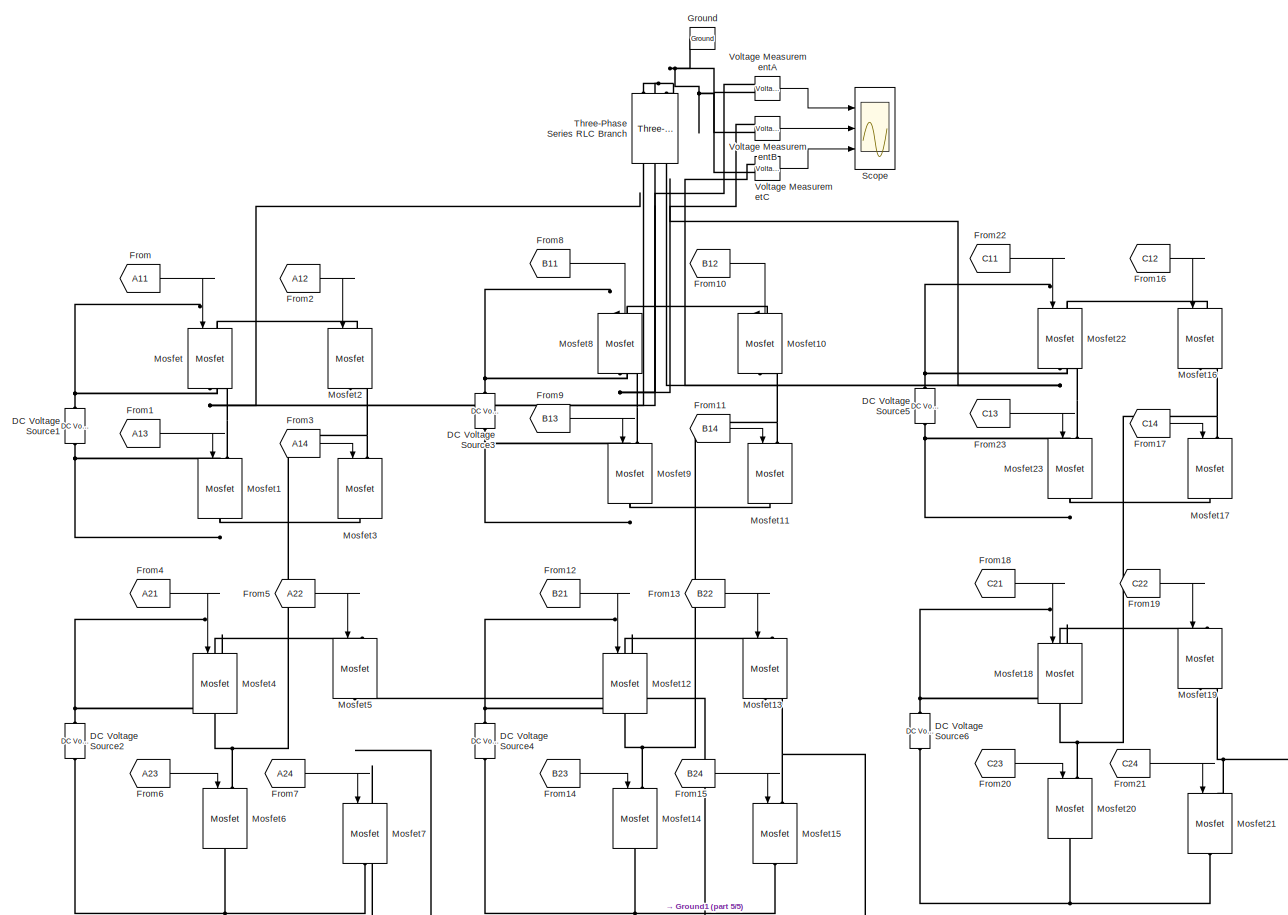
[diagram: root canvas - part 1/5, right side, full height]
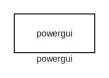
[diagram: root canvas - part 2/5, top center region]
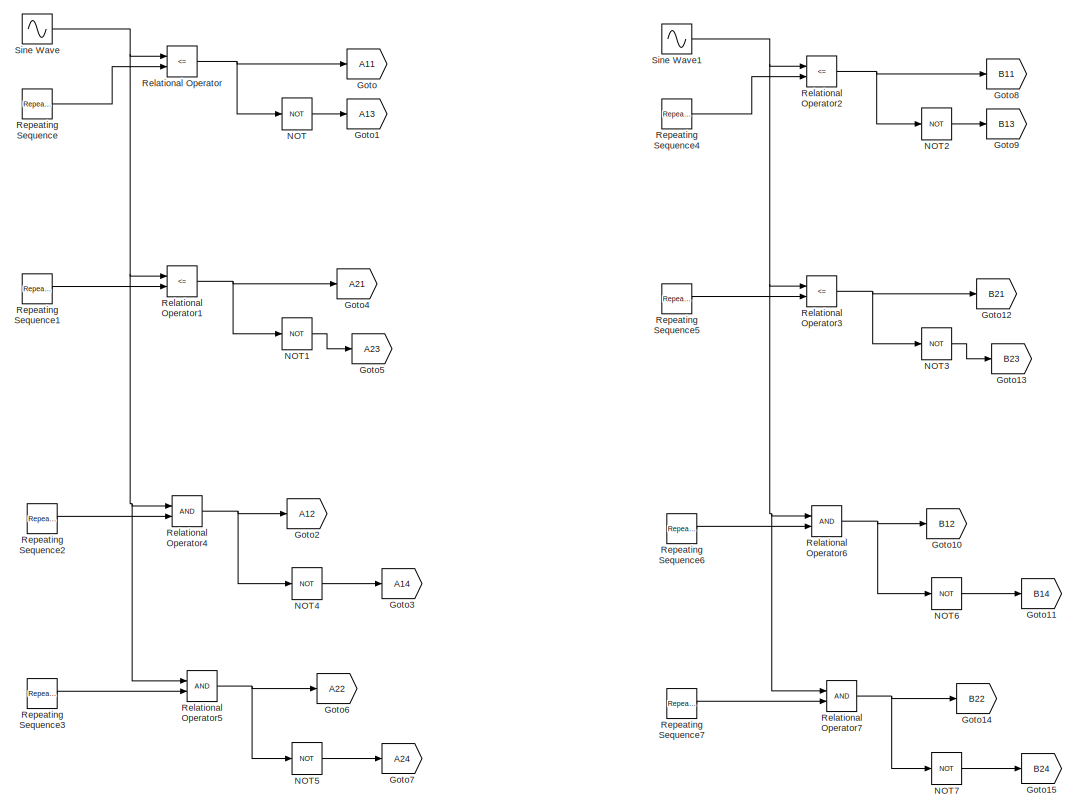
[diagram: root canvas - part 3/5, middle left region]
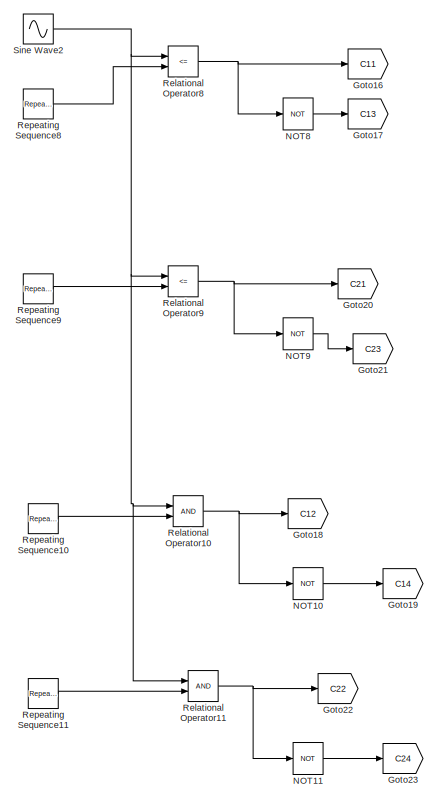
[diagram: root canvas - part 4/5, central region]
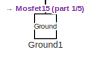
[diagram: root canvas - part 5/5, bottom right region]
MODEL slx_684bea2370a7
KIND model
CONFIG AbsTol = auto
CONFIG EnableMultiTasking = off
CONFIG FixedStep = auto
CONFIG MaxStep = 1e-6
CONFIG MinStep = auto
CONFIG RelTol = 1e-5
CONFIG SampleTimeConstraint = Unconstrained
CONFIG SolverName = ode45
CONFIG StartTime = 0.0
CONFIG StopTime = 0.5
BLOCK [Reference] DC Voltage Source1  REF=spsDCVoltageSourceLib/DC Voltage Source
  Ports = [0, 0, 0, 0, 0, 1, 1]
  SourceBlock = spsDCVoltageSourceLib/DC Voltage Source
  SourceProductBaseCode = PS
  SourceType = DC Voltage Source
BLOCK [Reference] DC Voltage Source2  REF=spsDCVoltageSourceLib/DC Voltage Source
  Ports = [0, 0, 0, 0, 0, 1, 1]
  SourceBlock = spsDCVoltageSourceLib/DC Voltage Source
  SourceProductBaseCode = PS
  SourceType = DC Voltage Source
BLOCK [Reference] DC Voltage Source3  REF=spsDCVoltageSourceLib/DC Voltage Source
  Ports = [0, 0, 0, 0, 0, 1, 1]
  SourceBlock = spsDCVoltageSourceLib/DC Voltage Source
  SourceProductBaseCode = PS
  SourceType = DC Voltage Source
BLOCK [Reference] DC Voltage Source4  REF=spsDCVoltageSourceLib/DC Voltage Source
  Ports = [0, 0, 0, 0, 0, 1, 1]
  SourceBlock = spsDCVoltageSourceLib/DC Voltage Source
  SourceProductBaseCode = PS
  SourceType = DC Voltage Source
BLOCK [Reference] DC Voltage Source5  REF=spsDCVoltageSourceLib/DC Voltage Source
  Ports = [0, 0, 0, 0, 0, 1, 1]
  SourceBlock = spsDCVoltageSourceLib/DC Voltage Source
  SourceProductBaseCode = PS
  SourceType = DC Voltage Source
BLOCK [Reference] DC Voltage Source6  REF=spsDCVoltageSourceLib/DC Voltage Source
  Ports = [0, 0, 0, 0, 0, 1, 1]
  SourceBlock = spsDCVoltageSourceLib/DC Voltage Source
  SourceProductBaseCode = PS
  SourceType = DC Voltage Source
BLOCK [From] From
  GotoTag = A11
BLOCK [From] From1
  GotoTag = A13
BLOCK [From] From10
  GotoTag = B12
BLOCK [From] From11
  GotoTag = B14
BLOCK [From] From12
  GotoTag = B21
BLOCK [From] From13
  GotoTag = B22
BLOCK [From] From14
  GotoTag = B23
BLOCK [From] From15
  GotoTag = B24
BLOCK [From] From16
  GotoTag = C12
BLOCK [From] From17
  GotoTag = C14
BLOCK [From] From18
  GotoTag = C21
BLOCK [From] From19
  GotoTag = C22
BLOCK [From] From2
  GotoTag = A12
BLOCK [From] From20
  GotoTag = C23
BLOCK [From] From21
  GotoTag = C24
BLOCK [From] From22
  GotoTag = C11
BLOCK [From] From23
  GotoTag = C13
BLOCK [From] From3
  GotoTag = A14
BLOCK [From] From4
  GotoTag = A21
BLOCK [From] From5
  GotoTag = A22
BLOCK [From] From6
  GotoTag = A23
BLOCK [From] From7
  GotoTag = A24
BLOCK [From] From8
  GotoTag = B11
BLOCK [From] From9
  GotoTag = B13
BLOCK [Goto] Goto
  GotoTag = A11
BLOCK [Goto] Goto1
  GotoTag = A13
BLOCK [Goto] Goto10
  GotoTag = B12
BLOCK [Goto] Goto11
  GotoTag = B14
BLOCK [Goto] Goto12
  GotoTag = B21
BLOCK [Goto] Goto13
  GotoTag = B23
BLOCK [Goto] Goto14
  GotoTag = B22
BLOCK [Goto] Goto15
  GotoTag = B24
BLOCK [Goto] Goto16
  GotoTag = C11
BLOCK [Goto] Goto17
  GotoTag = C13
BLOCK [Goto] Goto18
  GotoTag = C12
BLOCK [Goto] Goto19
  GotoTag = C14
BLOCK [Goto] Goto2
  GotoTag = A12
BLOCK [Goto] Goto20
  GotoTag = C21
BLOCK [Goto] Goto21
  GotoTag = C23
BLOCK [Goto] Goto22
  GotoTag = C22
BLOCK [Goto] Goto23
  GotoTag = C24
BLOCK [Goto] Goto3
  GotoTag = A14
BLOCK [Goto] Goto4
  GotoTag = A21
BLOCK [Goto] Goto5
  GotoTag = A23
BLOCK [Goto] Goto6
  GotoTag = A22
BLOCK [Goto] Goto7
  GotoTag = A24
BLOCK [Goto] Goto8
  GotoTag = B11
BLOCK [Goto] Goto9
  GotoTag = B13
BLOCK [Reference] Ground  REF=spsGroundLib/Ground
  NameLocation = top
  Ports = [0, 0, 0, 0, 0, 1]
  SourceBlock = spsGroundLib/Ground
  SourceProductBaseCode = PS
  SourceType = Ground
BLOCK [Reference] Ground1  REF=spsGroundLib/Ground
  NameLocation = right
  Ports = [0, 0, 0, 0, 0, 1]
  SourceBlock = spsGroundLib/Ground
  SourceProductBaseCode = PS
  SourceType = Ground
BLOCK [Reference] Mosfet  REF=spsMosfetLib/Mosfet
  NameLocation = left
  Ports = [1, 0, 0, 0, 0, 1, 1]
  SourceBlock = spsMosfetLib/Mosfet
  SourceProductBaseCode = PS
  SourceType = Mosfet
BLOCK [Reference] Mosfet1  REF=spsMosfetLib/Mosfet
  NameLocation = left
  Ports = [1, 0, 0, 0, 0, 1, 1]
  SourceBlock = spsMosfetLib/Mosfet
  SourceProductBaseCode = PS
  SourceType = Mosfet
BLOCK [Reference] Mosfet10  REF=spsMosfetLib/Mosfet
  NameLocation = left
  Ports = [1, 0, 0, 0, 0, 1, 1]
  SourceBlock = spsMosfetLib/Mosfet
  SourceProductBaseCode = PS
  SourceType = Mosfet
BLOCK [Reference] Mosfet11  REF=spsMosfetLib/Mosfet
  NameLocation = left
  Ports = [1, 0, 0, 0, 0, 1, 1]
  SourceBlock = spsMosfetLib/Mosfet
  SourceProductBaseCode = PS
  SourceType = Mosfet
BLOCK [Reference] Mosfet12  REF=spsMosfetLib/Mosfet
  NameLocation = left
  Ports = [1, 0, 0, 0, 0, 1, 1]
  SourceBlock = spsMosfetLib/Mosfet
  SourceProductBaseCode = PS
  SourceType = Mosfet
BLOCK [Reference] Mosfet13  REF=spsMosfetLib/Mosfet
  NameLocation = left
  Ports = [1, 0, 0, 0, 0, 1, 1]
  SourceBlock = spsMosfetLib/Mosfet
  SourceProductBaseCode = PS
  SourceType = Mosfet
BLOCK [Reference] Mosfet14  REF=spsMosfetLib/Mosfet
  NameLocation = left
  Ports = [1, 0, 0, 0, 0, 1, 1]
  SourceBlock = spsMosfetLib/Mosfet
  SourceProductBaseCode = PS
  SourceType = Mosfet
BLOCK [Reference] Mosfet15  REF=spsMosfetLib/Mosfet
  NameLocation = left
  Ports = [1, 0, 0, 0, 0, 1, 1]
  SourceBlock = spsMosfetLib/Mosfet
  SourceProductBaseCode = PS
  SourceType = Mosfet
BLOCK [Reference] Mosfet16  REF=spsMosfetLib/Mosfet
  NameLocation = left
  Ports = [1, 0, 0, 0, 0, 1, 1]
  SourceBlock = spsMosfetLib/Mosfet
  SourceProductBaseCode = PS
  SourceType = Mosfet
BLOCK [Reference] Mosfet17  REF=spsMosfetLib/Mosfet
  NameLocation = left
  Ports = [1, 0, 0, 0, 0, 1, 1]
  SourceBlock = spsMosfetLib/Mosfet
  SourceProductBaseCode = PS
  SourceType = Mosfet
BLOCK [Reference] Mosfet18  REF=spsMosfetLib/Mosfet
  NameLocation = left
  Ports = [1, 0, 0, 0, 0, 1, 1]
  SourceBlock = spsMosfetLib/Mosfet
  SourceProductBaseCode = PS
  SourceType = Mosfet
BLOCK [Reference] Mosfet19  REF=spsMosfetLib/Mosfet
  NameLocation = left
  Ports = [1, 0, 0, 0, 0, 1, 1]
  SourceBlock = spsMosfetLib/Mosfet
  SourceProductBaseCode = PS
  SourceType = Mosfet
BLOCK [Reference] Mosfet2  REF=spsMosfetLib/Mosfet
  NameLocation = left
  Ports = [1, 0, 0, 0, 0, 1, 1]
  SourceBlock = spsMosfetLib/Mosfet
  SourceProductBaseCode = PS
  SourceType = Mosfet
BLOCK [Reference] Mosfet20  REF=spsMosfetLib/Mosfet
  NameLocation = left
  Ports = [1, 0, 0, 0, 0, 1, 1]
  SourceBlock = spsMosfetLib/Mosfet
  SourceProductBaseCode = PS
  SourceType = Mosfet
BLOCK [Reference] Mosfet21  REF=spsMosfetLib/Mosfet
  NameLocation = left
  Ports = [1, 0, 0, 0, 0, 1, 1]
  SourceBlock = spsMosfetLib/Mosfet
  SourceProductBaseCode = PS
  SourceType = Mosfet
BLOCK [Reference] Mosfet22  REF=spsMosfetLib/Mosfet
  NameLocation = left
  Ports = [1, 0, 0, 0, 0, 1, 1]
  SourceBlock = spsMosfetLib/Mosfet
  SourceProductBaseCode = PS
  SourceType = Mosfet
BLOCK [Reference] Mosfet23  REF=spsMosfetLib/Mosfet
  NameLocation = left
  Ports = [1, 0, 0, 0, 0, 1, 1]
  SourceBlock = spsMosfetLib/Mosfet
  SourceProductBaseCode = PS
  SourceType = Mosfet
BLOCK [Reference] Mosfet3  REF=spsMosfetLib/Mosfet
  NameLocation = left
  Ports = [1, 0, 0, 0, 0, 1, 1]
  SourceBlock = spsMosfetLib/Mosfet
  SourceProductBaseCode = PS
  SourceType = Mosfet
BLOCK [Reference] Mosfet4  REF=spsMosfetLib/Mosfet
  NameLocation = left
  Ports = [1, 0, 0, 0, 0, 1, 1]
  SourceBlock = spsMosfetLib/Mosfet
  SourceProductBaseCode = PS
  SourceType = Mosfet
BLOCK [Reference] Mosfet5  REF=spsMosfetLib/Mosfet
  NameLocation = left
  Ports = [1, 0, 0, 0, 0, 1, 1]
  SourceBlock = spsMosfetLib/Mosfet
  SourceProductBaseCode = PS
  SourceType = Mosfet
BLOCK [Reference] Mosfet6  REF=spsMosfetLib/Mosfet
  NameLocation = left
  Ports = [1, 0, 0, 0, 0, 1, 1]
  SourceBlock = spsMosfetLib/Mosfet
  SourceProductBaseCode = PS
  SourceType = Mosfet
BLOCK [Reference] Mosfet7  REF=spsMosfetLib/Mosfet
  NameLocation = left
  Ports = [1, 0, 0, 0, 0, 1, 1]
  SourceBlock = spsMosfetLib/Mosfet
  SourceProductBaseCode = PS
  SourceType = Mosfet
BLOCK [Reference] Mosfet8  REF=spsMosfetLib/Mosfet
  NameLocation = left
  Ports = [1, 0, 0, 0, 0, 1, 1]
  SourceBlock = spsMosfetLib/Mosfet
  SourceProductBaseCode = PS
  SourceType = Mosfet
BLOCK [Reference] Mosfet9  REF=spsMosfetLib/Mosfet
  NameLocation = left
  Ports = [1, 0, 0, 0, 0, 1, 1]
  SourceBlock = spsMosfetLib/Mosfet
  SourceProductBaseCode = PS
  SourceType = Mosfet
BLOCK [Logic] NOT
  AllPortsSameDT = off
  Operator = NOT
  OutDataTypeStr = boolean
  Ports = [1, 1]
BLOCK [Logic] NOT1
  AllPortsSameDT = off
  Operator = NOT
  OutDataTypeStr = boolean
  Ports = [1, 1]
BLOCK [Logic] NOT10
  AllPortsSameDT = off
  Operator = NOT
  OutDataTypeStr = boolean
  Ports = [1, 1]
BLOCK [Logic] NOT11
  AllPortsSameDT = off
  Operator = NOT
  OutDataTypeStr = boolean
  Ports = [1, 1]
BLOCK [Logic] NOT2
  AllPortsSameDT = off
  Operator = NOT
  OutDataTypeStr = boolean
  Ports = [1, 1]
BLOCK [Logic] NOT3
  AllPortsSameDT = off
  Operator = NOT
  OutDataTypeStr = boolean
  Ports = [1, 1]
BLOCK [Logic] NOT4
  AllPortsSameDT = off
  Operator = NOT
  OutDataTypeStr = boolean
  Ports = [1, 1]
BLOCK [Logic] NOT5
  AllPortsSameDT = off
  Operator = NOT
  OutDataTypeStr = boolean
  Ports = [1, 1]
BLOCK [Logic] NOT6
  AllPortsSameDT = off
  Operator = NOT
  OutDataTypeStr = boolean
  Ports = [1, 1]
BLOCK [Logic] NOT7
  AllPortsSameDT = off
  Operator = NOT
  OutDataTypeStr = boolean
  Ports = [1, 1]
BLOCK [Logic] NOT8
  AllPortsSameDT = off
  Operator = NOT
  OutDataTypeStr = boolean
  Ports = [1, 1]
BLOCK [Logic] NOT9
  AllPortsSameDT = off
  Operator = NOT
  OutDataTypeStr = boolean
  Ports = [1, 1]
BLOCK [RelationalOperator] Relational Operator
  InputSameDT = off
  Operator = <=
  OutDataTypeStr = boolean
  Ports = [2, 1]
  RndMeth = Simplest
BLOCK [RelationalOperator] Relational Operator1
  InputSameDT = off
  Operator = <=
  OutDataTypeStr = boolean
  Ports = [2, 1]
  RndMeth = Simplest
BLOCK [RelationalOperator] Relational Operator10
  InputSameDT = off
  OutDataTypeStr = boolean
  Ports = [2, 1]
  RndMeth = Simplest
BLOCK [RelationalOperator] Relational Operator11
  InputSameDT = off
  OutDataTypeStr = boolean
  Ports = [2, 1]
  RndMeth = Simplest
BLOCK [RelationalOperator] Relational Operator2
  InputSameDT = off
  Operator = <=
  OutDataTypeStr = boolean
  Ports = [2, 1]
  RndMeth = Simplest
BLOCK [RelationalOperator] Relational Operator3
  InputSameDT = off
  Operator = <=
  OutDataTypeStr = boolean
  Ports = [2, 1]
  RndMeth = Simplest
BLOCK [RelationalOperator] Relational Operator4
  InputSameDT = off
  OutDataTypeStr = boolean
  Ports = [2, 1]
  RndMeth = Simplest
BLOCK [RelationalOperator] Relational Operator5
  InputSameDT = off
  OutDataTypeStr = boolean
  Ports = [2, 1]
  RndMeth = Simplest
BLOCK [RelationalOperator] Relational Operator6
  InputSameDT = off
  OutDataTypeStr = boolean
  Ports = [2, 1]
  RndMeth = Simplest
BLOCK [RelationalOperator] Relational Operator7
  InputSameDT = off
  OutDataTypeStr = boolean
  Ports = [2, 1]
  RndMeth = Simplest
BLOCK [RelationalOperator] Relational Operator8
  InputSameDT = off
  Operator = <=
  OutDataTypeStr = boolean
  Ports = [2, 1]
  RndMeth = Simplest
BLOCK [RelationalOperator] Relational Operator9
  InputSameDT = off
  Operator = <=
  OutDataTypeStr = boolean
  Ports = [2, 1]
  RndMeth = Simplest
BLOCK [Reference] Repeating Sequence  REF=simulink/Sources/Repeating
Sequence
  Ports = [0, 1]
  SourceBlock = simulink/Sources/Repeating\nSequence
  SourceProductBaseCode = SL
  SourceType = Repeating table
BLOCK [Reference] Repeating Sequence1  REF=simulink/Sources/Repeating
Sequence
  Ports = [0, 1]
  SourceBlock = simulink/Sources/Repeating\nSequence
  SourceProductBaseCode = SL
  SourceType = Repeating table
BLOCK [Reference] Repeating Sequence10  REF=simulink/Sources/Repeating
Sequence
  Ports = [0, 1]
  SourceBlock = simulink/Sources/Repeating\nSequence
  SourceProductBaseCode = SL
  SourceType = Repeating table
BLOCK [Reference] Repeating Sequence11  REF=simulink/Sources/Repeating
Sequence
  Ports = [0, 1]
  SourceBlock = simulink/Sources/Repeating\nSequence
  SourceProductBaseCode = SL
  SourceType = Repeating table
BLOCK [Reference] Repeating Sequence2  REF=simulink/Sources/Repeating
Sequence
  Ports = [0, 1]
  SourceBlock = simulink/Sources/Repeating\nSequence
  SourceProductBaseCode = SL
  SourceType = Repeating table
BLOCK [Reference] Repeating Sequence3  REF=simulink/Sources/Repeating
Sequence
  Ports = [0, 1]
  SourceBlock = simulink/Sources/Repeating\nSequence
  SourceProductBaseCode = SL
  SourceType = Repeating table
BLOCK [Reference] Repeating Sequence4  REF=simulink/Sources/Repeating
Sequence
  Ports = [0, 1]
  SourceBlock = simulink/Sources/Repeating\nSequence
  SourceProductBaseCode = SL
  SourceType = Repeating table
BLOCK [Reference] Repeating Sequence5  REF=simulink/Sources/Repeating
Sequence
  Ports = [0, 1]
  SourceBlock = simulink/Sources/Repeating\nSequence
  SourceProductBaseCode = SL
  SourceType = Repeating table
BLOCK [Reference] Repeating Sequence6  REF=simulink/Sources/Repeating
Sequence
  Ports = [0, 1]
  SourceBlock = simulink/Sources/Repeating\nSequence
  SourceProductBaseCode = SL
  SourceType = Repeating table
BLOCK [Reference] Repeating Sequence7  REF=simulink/Sources/Repeating
Sequence
  Ports = [0, 1]
  SourceBlock = simulink/Sources/Repeating\nSequence
  SourceProductBaseCode = SL
  SourceType = Repeating table
BLOCK [Reference] Repeating Sequence8  REF=simulink/Sources/Repeating
Sequence
  Ports = [0, 1]
  SourceBlock = simulink/Sources/Repeating\nSequence
  SourceProductBaseCode = SL
  SourceType = Repeating table
BLOCK [Reference] Repeating Sequence9  REF=simulink/Sources/Repeating
Sequence
  Ports = [0, 1]
  SourceBlock = simulink/Sources/Repeating\nSequence
  SourceProductBaseCode = SL
  SourceType = Repeating table
BLOCK [Scope] Scope
  Floating = off
  NumInputPorts = 3
  Ports = [3]
  ScopeSpecificationString = Simulink.scopes.TimeScopeBlockCfg('CurrentConfiguration', extmgr.ConfigurationSet(extmgr.Configuration('Core','General UI',true),extmgr.Configuration('Core','Source UI',true),extmgr.Configuration('Sources','WiredSimulink',true),extmgr.Configuration('Visuals','Time Domain',true,'SerializedDisplays',{struct('MinYLimReal','-249.00349','MaxYLimReal','249.00349','YLabelReal','Phase-A','MinYLimMag',' 0....<+2830ch>
BLOCK [Sin] Sine Wave
  Amplitude = 1.7
  Frequency = 50*2*pi
  Ports = [0, 1]
  SampleTime = 0
BLOCK [Sin] Sine Wave1
  Amplitude = 1.7
  Frequency = 50*2*pi
  Phase = 2*pi/3
  Ports = [0, 1]
  SampleTime = 0
BLOCK [Sin] Sine Wave2
  Amplitude = 1.7
  Frequency = 50*2*pi
  Phase = 4*pi/3
  Ports = [0, 1]
  SampleTime = 0
BLOCK [Reference] Three-Phase Series RLC Branch  REF=spsThreePhaseSeriesRLCBranchLib/Three-Phase
Series RLC Branch
  AttributesFormatString = \n
  NameLocation = right
  Ports = [0, 0, 0, 0, 0, 3, 3]
  SourceBlock = spsThreePhaseSeriesRLCBranchLib/Three-Phase\nSeries RLC Branch
  SourceProductBaseCode = PS
  SourceType = Three-Phase Series RLC Branch
BLOCK [Reference] Voltage MeasurementA  REF=spsVoltageMeasurementLib/Voltage Measurement
  Ports = [0, 1, 0, 0, 0, 2]
  SourceBlock = spsVoltageMeasurementLib/Voltage Measurement
  SourceProductBaseCode = PS
  SourceType = Voltage Measurement
  UserDataPersistent = on
BLOCK [Reference] Voltage MeasurementB  REF=spsVoltageMeasurementLib/Voltage Measurement
  Ports = [0, 1, 0, 0, 0, 2]
  SourceBlock = spsVoltageMeasurementLib/Voltage Measurement
  SourceProductBaseCode = PS
  SourceType = Voltage Measurement
  UserDataPersistent = on
BLOCK [Reference] Voltage MeasuremetC  REF=spsVoltageMeasurementLib/Voltage Measurement
  Ports = [0, 1, 0, 0, 0, 2]
  SourceBlock = spsVoltageMeasurementLib/Voltage Measurement
  SourceProductBaseCode = PS
  SourceType = Voltage Measurement
  UserDataPersistent = on
BLOCK [Reference] powergui  REF=spspowerguiLib/powergui
  Ports = []
  Priority = 1
  SourceBlock = spspowerguiLib/powergui
  SourceProductBaseCode = PS
  SourceType = PSB option menu block
LINE From10:1 -> Mosfet10:1
LINE From11:1 -> Mosfet11:1
LINE From12:1 -> Mosfet12:1
LINE From13:1 -> Mosfet13:1
LINE From14:1 -> Mosfet14:1
LINE From15:1 -> Mosfet15:1
LINE From16:1 -> Mosfet16:1
LINE From17:1 -> Mosfet17:1
LINE From18:1 -> Mosfet18:1
LINE From19:1 -> Mosfet19:1
LINE From1:1 -> Mosfet1:1
LINE From20:1 -> Mosfet20:1
LINE From21:1 -> Mosfet21:1
LINE From22:1 -> Mosfet22:1
LINE From23:1 -> Mosfet23:1
LINE From2:1 -> Mosfet2:1
LINE From3:1 -> Mosfet3:1
LINE From4:1 -> Mosfet4:1
LINE From5:1 -> Mosfet5:1
LINE From6:1 -> Mosfet6:1
LINE From7:1 -> Mosfet7:1
LINE From8:1 -> Mosfet8:1
LINE From9:1 -> Mosfet9:1
LINE From:1 -> Mosfet:1
LINE NOT10:1 -> Goto19:1
LINE NOT11:1 -> Goto23:1
LINE NOT1:1 -> Goto5:1
LINE NOT2:1 -> Goto9:1
LINE NOT3:1 -> Goto13:1
LINE NOT4:1 -> Goto3:1
LINE NOT5:1 -> Goto7:1
LINE NOT6:1 -> Goto11:1
LINE NOT7:1 -> Goto15:1
LINE NOT8:1 -> Goto17:1
LINE NOT9:1 -> Goto21:1
LINE NOT:1 -> Goto1:1
NET Relational Operator10:1 -> Goto18:1, NOT10:1
NET Relational Operator11:1 -> Goto22:1, NOT11:1
NET Relational Operator1:1 -> Goto4:1, NOT1:1
NET Relational Operator2:1 -> Goto8:1, NOT2:1
NET Relational Operator3:1 -> Goto12:1, NOT3:1
NET Relational Operator4:1 -> Goto2:1, NOT4:1
NET Relational Operator5:1 -> Goto6:1, NOT5:1
NET Relational Operator6:1 -> Goto10:1, NOT6:1
NET Relational Operator7:1 -> Goto14:1, NOT7:1
NET Relational Operator8:1 -> Goto16:1, NOT8:1
NET Relational Operator9:1 -> Goto20:1, NOT9:1
NET Relational Operator:1 -> Goto:1, NOT:1
LINE Repeating Sequence10:1 -> Relational Operator10:2
LINE Repeating Sequence11:1 -> Relational Operator11:2
LINE Repeating Sequence1:1 -> Relational Operator1:2
LINE Repeating Sequence2:1 -> Relational Operator4:2
LINE Repeating Sequence3:1 -> Relational Operator5:2
LINE Repeating Sequence4:1 -> Relational Operator2:2
LINE Repeating Sequence5:1 -> Relational Operator3:2
LINE Repeating Sequence6:1 -> Relational Operator6:2
LINE Repeating Sequence7:1 -> Relational Operator7:2
LINE Repeating Sequence8:1 -> Relational Operator8:2
LINE Repeating Sequence9:1 -> Relational Operator9:2
LINE Repeating Sequence:1 -> Relational Operator:2
NET Sine Wave1:1 -> Relational Operator2:1, Relational Operator3:1, Relational Operator6:1, Relational Operator7:1
NET Sine Wave2:1 -> Relational Operator10:1, Relational Operator11:1, Relational Operator8:1, Relational Operator9:1
NET Sine Wave:1 -> Relational Operator1:1, Relational Operator4:1, Relational Operator5:1, Relational Operator:1
LINE Voltage MeasurementA:1 -> Scope:1
LINE Voltage MeasurementB:1 -> Scope:2
LINE Voltage MeasuremetC:1 -> Scope:3
PNET net1: DC Voltage Source1:LConn1 -- Mosfet1:RConn1 -- Mosfet3:RConn1
PNET net2: DC Voltage Source1:RConn1 -- Mosfet2:LConn1 -- Mosfet:LConn1
PNET net3: DC Voltage Source2:LConn1 -- Mosfet6:RConn1 -- Mosfet7:RConn1
PNET net4: DC Voltage Source2:RConn1 -- Mosfet4:LConn1 -- Mosfet5:LConn1
PNET net5: DC Voltage Source3:LConn1 -- Mosfet11:RConn1 -- Mosfet9:RConn1
PNET net6: DC Voltage Source3:RConn1 -- Mosfet10:LConn1 -- Mosfet8:LConn1
PNET net7: DC Voltage Source4:LConn1 -- Mosfet14:RConn1 -- Mosfet15:RConn1
PNET net8: DC Voltage Source4:RConn1 -- Mosfet12:LConn1 -- Mosfet13:LConn1
PNET net9: DC Voltage Source5:LConn1 -- Mosfet17:RConn1 -- Mosfet23:RConn1
PNET net10: DC Voltage Source5:RConn1 -- Mosfet16:LConn1 -- Mosfet22:LConn1
PNET net11: DC Voltage Source6:LConn1 -- Mosfet20:RConn1 -- Mosfet21:RConn1
PNET net12: DC Voltage Source6:RConn1 -- Mosfet18:LConn1 -- Mosfet19:LConn1
PNET net13: Ground1:LConn1 -- Mosfet13:RConn1 -- Mosfet15:LConn1 -- Mosfet19:RConn1 -- Mosfet21:LConn1 -- Mosfet5:RConn1 -- Mosfet7:LConn1
PNET net14: Ground:LConn1 -- Three-Phase Series RLC Branch:RConn1 -- Three-Phase Series RLC Branch:RConn2 -- Three-Phase Series RLC Branch:RConn3 -- Voltage MeasurementA:LConn2 -- Voltage MeasurementB:LConn2 -- Voltage MeasuremetC:LConn2
PNET net15: Mosfet10:RConn1 -- Mosfet11:LConn1 -- Mosfet12:RConn1 -- Mosfet14:LConn1
PNET net16: Mosfet16:RConn1 -- Mosfet17:LConn1 -- Mosfet18:RConn1 -- Mosfet20:LConn1
PNET net17: Mosfet1:LConn1 -- Mosfet:RConn1 -- Three-Phase Series RLC Branch:LConn1 -- Voltage MeasurementA:LConn1
PNET net18: Mosfet22:RConn1 -- Mosfet23:LConn1 -- Three-Phase Series RLC Branch:LConn3 -- Voltage MeasuremetC:LConn1
PNET net19: Mosfet2:RConn1 -- Mosfet3:LConn1 -- Mosfet4:RConn1 -- Mosfet6:LConn1
PNET net20: Mosfet8:RConn1 -- Mosfet9:LConn1 -- Three-Phase Series RLC Branch:LConn2 -- Voltage MeasurementB:LConn1
note: NET lines group one-source signal fan-out (src -> all destinations, sorted); 1:1 wires keep LINE; PNET lines group multi-terminal physical nets as a canonical sorted terminal list (undirected conserving connections); 2-terminal nets keep the pairwise PLINE form
